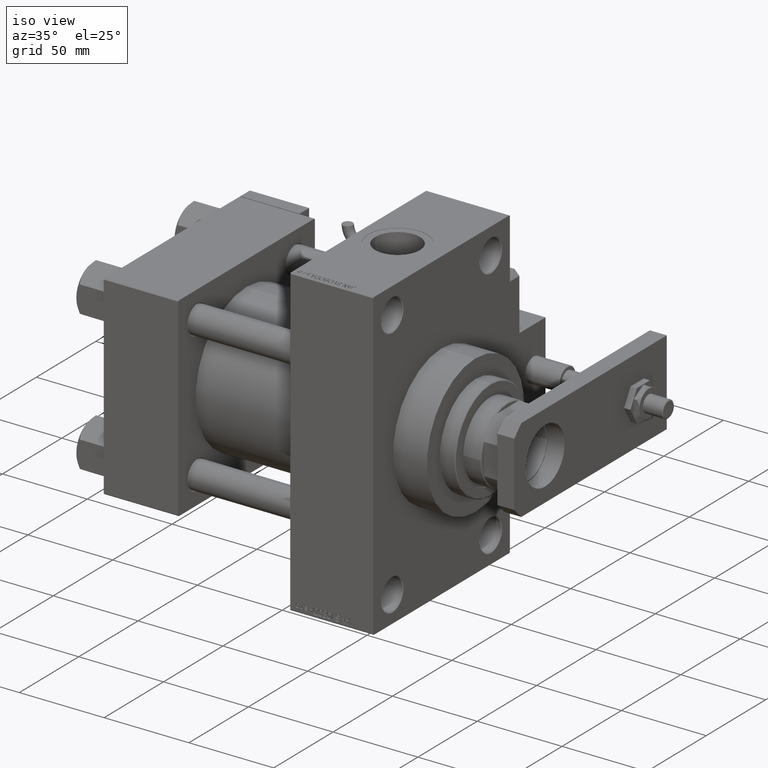
[diagram: clean part render]
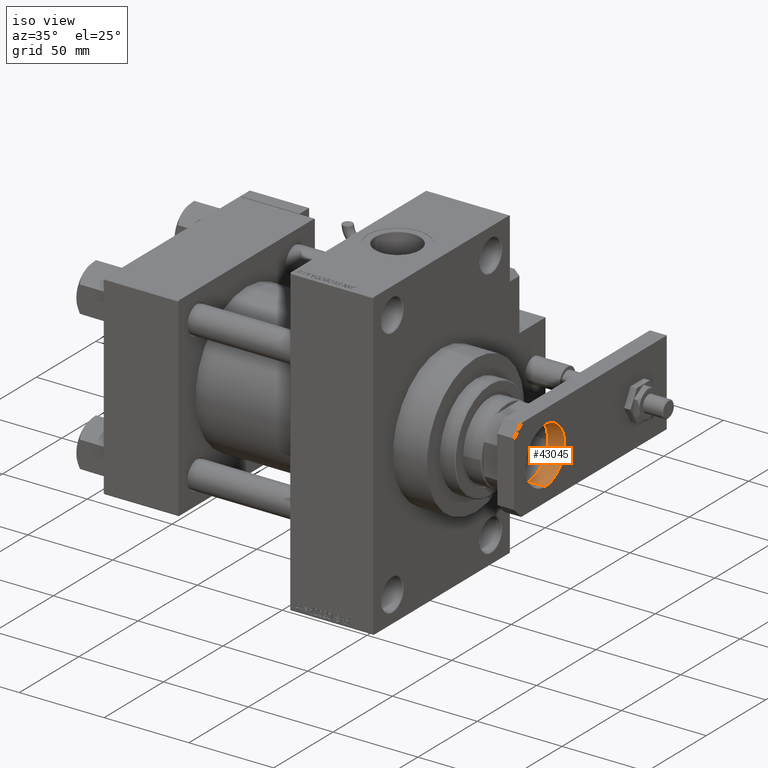
[diagram: same view with one face highlighted and labeled with its STEP entity id]
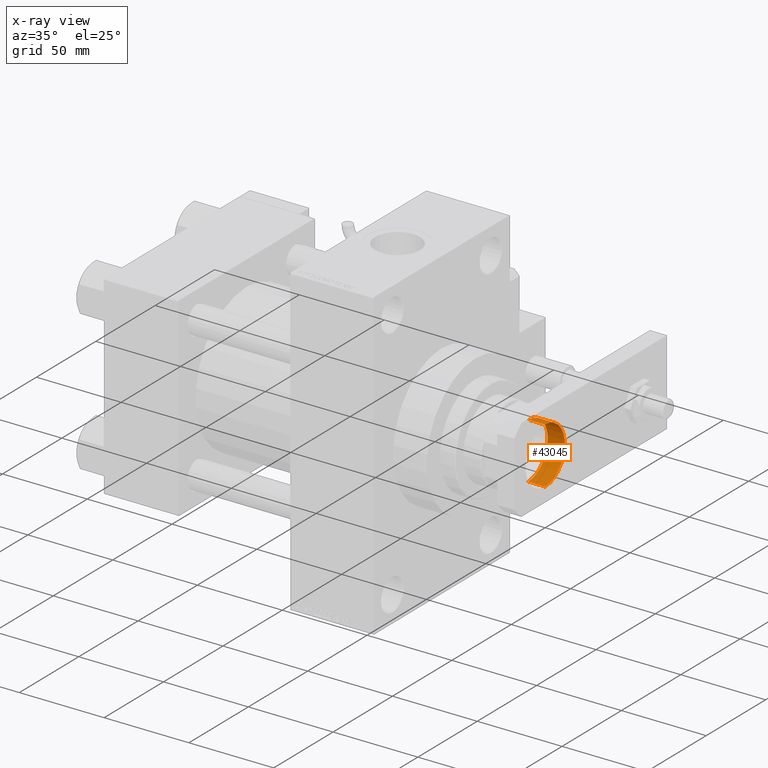
[diagram: x-ray of the same camera — body ghosted, the highlighted face saturated]
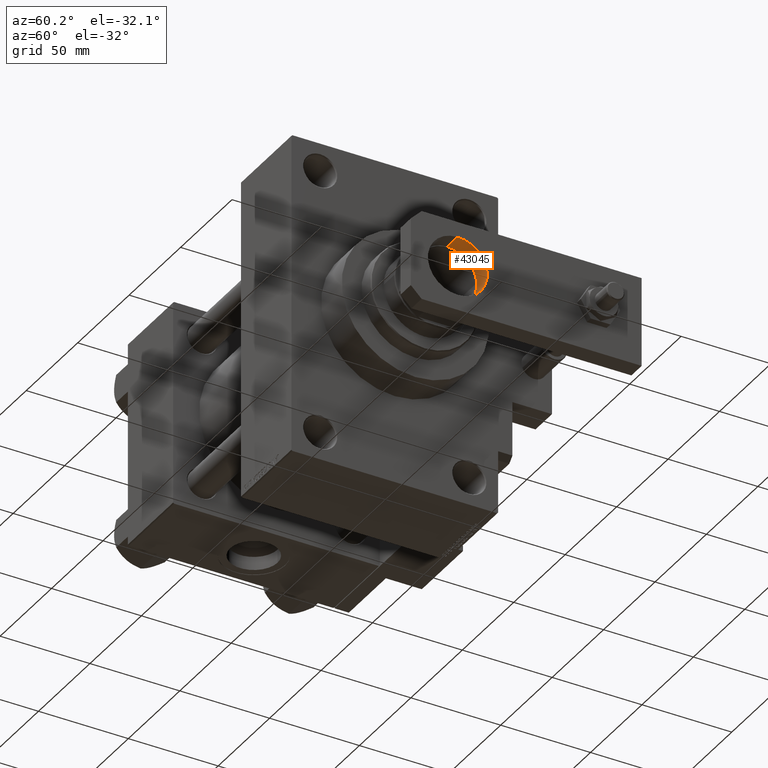
[diagram: same view with one face highlighted and labeled with its STEP entity id]
A machine part, iso view. The second image highlights one B-rep face of the part: STEP entity #43045.
The next image is the same camera in x-ray: the body ghosted, the highlighted face saturated — about 0% of this face is hidden behind the body in this view.
A second angle (auxiliary view) of the same face is appended — the face is thin or edge-on in the first view.
In plain terms, the highlighted cylindrical surface (edge-blend (fillet) strip) has radius 16.5 mm, axis along (1, -0, -0).
Its self-contained STEP definition (entity closure, byte-faithful):
#452 = VERTEX_POINT ( 'NONE', #36691 ) ;
#1182 = CIRCLE ( 'NONE', #32571, 16.50000000000000000 ) ;
#3148 = CYLINDRICAL_SURFACE ( 'NONE', #29793, 16.50000000000000000 ) ;
#6105 = ORIENTED_EDGE ( 'NONE', *, *, #22483, .F. ) ;
#6808 = DIRECTION ( 'NONE',  ( -1.000000000000000000, 0.000000000000000000, 0.000000000000000000 ) ) ;
#8063 = CARTESIAN_POINT ( 'NONE',  ( 16.50000000000000000, 26.00000000000001421, 10.00000000000000000 ) ) ;
#8208 = DIRECTION ( 'NONE',  ( 1.000000000000000000, 0.000000000000000000, 0.000000000000000000 ) ) ;
#10166 = VECTOR ( 'NONE', #30861, 1000.000000000000000 ) ;
#11298 = DIRECTION ( 'NONE',  ( -0.000000000000000000, -0.000000000000000000, -1.000000000000000000 ) ) ;
#11684 = CARTESIAN_POINT ( 'NONE',  ( 16.50000000000000000, 26.00000000000001421, 10.00000000000000000 ) ) ;
#14007 = LINE ( 'NONE', #22714, #10166 ) ;
#14981 = EDGE_CURVE ( 'NONE', #19731, #39616, #51886, .T. ) ;
#15838 = CARTESIAN_POINT ( 'NONE',  ( 16.50000000000000000, 26.00000000000001421, 0.000000000000000000 ) ) ;
#19731 = VERTEX_POINT ( 'NONE', #8063 ) ;
#22483 = EDGE_CURVE ( 'NONE', #19731, #33658, #33034, .T. ) ;
#22714 = CARTESIAN_POINT ( 'NONE',  ( -16.50000000000000000, 26.00000000000001066, 10.00000000000000000 ) ) ;
#25042 = CARTESIAN_POINT ( 'NONE',  ( 0.000000000000000000, 26.00000000000001066, 10.00000000000000000 ) ) ;
#26388 = EDGE_CURVE ( 'NONE', #33658, #452, #1182, .T. ) ;
#28452 = ORIENTED_EDGE ( 'NONE', *, *, #45225, .T. ) ;
#28812 = DIRECTION ( 'NONE',  ( -0.000000000000000000, -0.000000000000000000, -1.000000000000000000 ) ) ;
#29793 = AXIS2_PLACEMENT_3D ( 'NONE', #53667, #11298, #6808 ) ;
#30233 = EDGE_LOOP ( 'NONE', ( #6105, #49868, #28452, #39185 ) ) ;
#30861 = DIRECTION ( 'NONE',  ( -0.000000000000000000, -0.000000000000000000, -1.000000000000000000 ) ) ;
#32571 = AXIS2_PLACEMENT_3D ( 'NONE', #54305, #36926, #49251 ) ;
#33034 = LINE ( 'NONE', #11684, #44161 ) ;
#33658 = VERTEX_POINT ( 'NONE', #15838 ) ;
#36297 = FACE_OUTER_BOUND ( 'NONE', #30233, .T. ) ;
#36691 = CARTESIAN_POINT ( 'NONE',  ( -16.50000000000000000, 26.00000000000001066, 0.000000000000000000 ) ) ;
#36926 = DIRECTION ( 'NONE',  ( 0.000000000000000000, 0.000000000000000000, 1.000000000000000000 ) ) ;
#37575 = AXIS2_PLACEMENT_3D ( 'NONE', #25042, #54528, #8208 ) ;
#39185 = ORIENTED_EDGE ( 'NONE', *, *, #26388, .F. ) ;
#39616 = VERTEX_POINT ( 'NONE', #44815 ) ;
#43045 = ADVANCED_FACE ( 'NONE', ( #36297 ), #3148, .F. ) ;
#44161 = VECTOR ( 'NONE', #28812, 1000.000000000000000 ) ;
#44815 = CARTESIAN_POINT ( 'NONE',  ( -16.50000000000000000, 26.00000000000001066, 10.00000000000000000 ) ) ;
#45225 = EDGE_CURVE ( 'NONE', #39616, #452, #14007, .T. ) ;
#49251 = DIRECTION ( 'NONE',  ( 1.000000000000000000, 0.000000000000000000, 0.000000000000000000 ) ) ;
#49868 = ORIENTED_EDGE ( 'NONE', *, *, #14981, .T. ) ;
#51886 = CIRCLE ( 'NONE', #37575, 16.50000000000000000 ) ;
#53667 = CARTESIAN_POINT ( 'NONE',  ( 0.000000000000000000, 26.00000000000001066, 10.00000000000000000 ) ) ;
#54305 = CARTESIAN_POINT ( 'NONE',  ( 0.000000000000000000, 26.00000000000001066, 0.000000000000000000 ) ) ;
#54528 = DIRECTION ( 'NONE',  ( 0.000000000000000000, 0.000000000000000000, 1.000000000000000000 ) ) ;